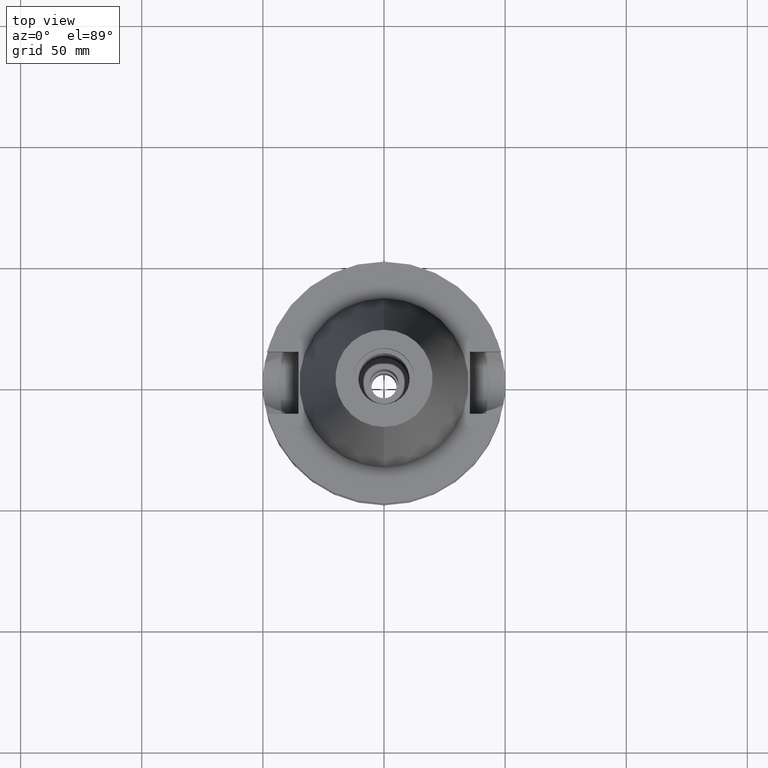
[diagram: clean part render]
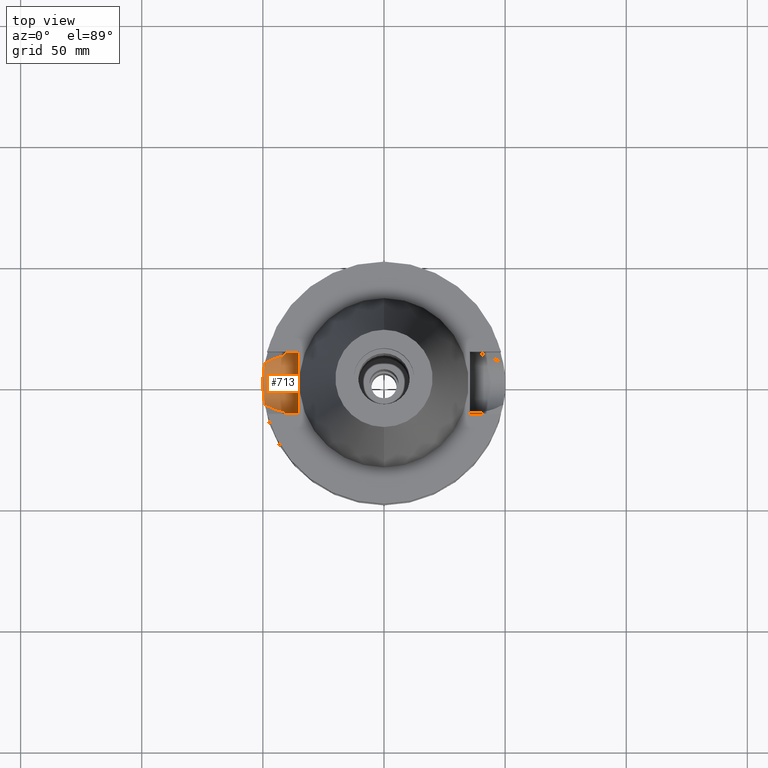
[diagram: same view with one face highlighted and labeled with its STEP entity id]
A machine part, top view. The second image highlights one B-rep face of the part: STEP entity #713.
In plain terms, the highlighted cylindrical surface (edge-blend (fillet) strip) has radius 12.85 mm, axis along (-1, 0, 0).
Its self-contained STEP definition (entity closure, byte-faithful):
#6 = CARTESIAN_POINT ( 'NONE',  ( -49.37885247688166857, 7.862144689149504373, -31.32188303187934864 ) ) ;
#53 = CARTESIAN_POINT ( 'NONE',  ( -49.97920013507613390, 1.472795262005128114, -33.92099889270693325 ) ) ;
#80 = CARTESIAN_POINT ( 'NONE',  ( -49.78995452572426217, 4.578044776538427563, -33.15683700927628763 ) ) ;
#93 = CARTESIAN_POINT ( 'NONE',  ( -45.33962880780819660, -10.38074117369953697, -28.72382121879870098 ) ) ;
#99 = CARTESIAN_POINT ( 'NONE',  ( -49.96639091857334591, 1.855009113946053168, -33.87135769987785494 ) ) ;
#104 = CARTESIAN_POINT ( 'NONE',  ( -44.11099979293295803, 10.81601836549861240, -28.09168216189613432 ) ) ;
#119 = CARTESIAN_POINT ( 'NONE',  ( -49.91487582338712059, 3.004850456022008842, -33.66796213052277409 ) ) ;
#165 = CARTESIAN_POINT ( 'NONE',  ( -49.26250064874000145, -8.556052234130000045, -30.73730776426999967 ) ) ;
#206 = CARTESIAN_POINT ( 'NONE',  ( -49.26250064874000145, 8.556052234130000045, -30.73730776426999967 ) ) ;
#255 = CARTESIAN_POINT ( 'NONE',  ( -35.39999999999999858, -12.84999999999999964, -21.14999999999999858 ) ) ;
#296 = VERTEX_POINT ( 'NONE', #3080 ) ;
#314 = CARTESIAN_POINT ( 'NONE',  ( -49.55496529460636168, -6.656265981446983560, -32.14166343315083907 ) ) ;
#331 = DIRECTION ( 'NONE',  ( -1.000000000000000000, 3.440913946376999995E-14, 0.0000000000000000000 ) ) ;
#341 = CARTESIAN_POINT ( 'NONE',  ( -49.55485633496233788, 6.657059843002524957, -32.14118191407251857 ) ) ;
#346 = CARTESIAN_POINT ( 'NONE',  ( -44.92493849550147189, 10.53397217017883847, -28.51065402509099300 ) ) ;
#347 = B_SPLINE_CURVE_WITH_KNOTS ( 'NONE', 3,
 ( #582, #1565, #2063, #3045, #104, #842, #346, #1334, #3063, #1148, #1902, #1644, #3145, #206 ),
 .UNSPECIFIED., .F., .F.,
 ( 4, 2, 2, 1, 1, 2, 2, 4 ),
 ( 0.0000000000000000000, 0.2500000000000061617, 0.3750000000000089928, 0.4375000000000113243, 0.4687500000000116573, 0.4843750000000118239, 0.5000000000000119904, 1.000000000000000000 ),
 .UNSPECIFIED. ) ;
#364 = CARTESIAN_POINT ( 'NONE',  ( -49.86764686234398880, -3.636664092662420522, -33.47624956157785903 ) ) ;
#371 = B_SPLINE_CURVE_WITH_KNOTS ( 'NONE', 3,
 ( #165, #3053, #1606, #898, #1815, #883, #2618, #1586, #2384, #1104, #1119, #93, #408, #1635, #1394, #3070 ),
 .UNSPECIFIED., .F., .F.,
 ( 4, 2, 2, 1, 1, 1, 1, 2, 2, 4 ),
 ( 0.0000000000000000000, 0.2500000000000027200, 0.3750000000000049960, 0.4375000000000059952, 0.4687500000000071054, 0.4843750000000076605, 0.4921875000000086597, 0.4960937500000093259, 0.5000000000000099920, 1.000000000000000000 ),
 .UNSPECIFIED. ) ;
#408 = CARTESIAN_POINT ( 'NONE',  ( -45.32642341649126649, -10.38569351047765643, -28.71702794901336731 ) ) ;
#426 = CARTESIAN_POINT ( 'NONE',  ( -40.79434747815605533, -11.92110216156726743, -25.97065217280587035 ) ) ;
#441 = CARTESIAN_POINT ( 'NONE',  ( -40.59737185188235031, 12.57410792978981462, -23.79858982319187177 ) ) ;
#451 = CARTESIAN_POINT ( 'NONE',  ( -40.58662879532096923, 12.60876850764078938, -23.62934185159354783 ) ) ;
#465 = CARTESIAN_POINT ( 'NONE',  ( -35.39999999999999858, 12.84999999999999964, -21.14999999999999858 ) ) ;
#473 = CARTESIAN_POINT ( 'NONE',  ( -40.61157134049236106, -12.52820429568858884, -24.00861743071703458 ) ) ;
#545 = CARTESIAN_POINT ( 'NONE',  ( -49.79190313573762694, 4.556817177836899546, -33.16490932762657451 ) ) ;
#557 = CARTESIAN_POINT ( 'NONE',  ( -49.75827387577500360, -4.921781670566413247, -33.02549376348177645 ) ) ;
#577 = CARTESIAN_POINT ( 'NONE',  ( -49.98151726930711192, -1.537017214616752447, -33.93129506476389423 ) ) ;
#582 = CARTESIAN_POINT ( 'NONE',  ( -40.85052569294000335, 11.72538061688000077, -26.40718074535000426 ) ) ;
#593 = CARTESIAN_POINT ( 'NONE',  ( -49.79673529074198512, -4.503806050048861920, -33.18492202728052121 ) ) ;
#620 = EDGE_LOOP ( 'NONE', ( #1935, #1120, #2472, #1181, #2020, #1851, #1783, #1509 ) ) ;
#713 = ADVANCED_FACE ( 'NONE', ( #1046 ), #2977, .F. ) ;
#754 = CARTESIAN_POINT ( 'NONE',  ( -49.52345606483140728, 6.887109232031024320, -31.99909553029120346 ) ) ;
#803 = CARTESIAN_POINT ( 'NONE',  ( -49.56384662194040658, -6.589859603613404282, -32.18165515063974169 ) ) ;
#819 = CARTESIAN_POINT ( 'NONE',  ( -49.60515396997856641, 6.281699430097785530, -32.36773838197739650 ) ) ;
#837 = CARTESIAN_POINT ( 'NONE',  ( -49.79134522951948583, -4.562917808909749517, -33.16259509180243725 ) ) ;
#842 = CARTESIAN_POINT ( 'NONE',  ( -44.65685915191760813, 10.62863037996527105, -28.37269979827329180 ) ) ;
#851 = VERTEX_POINT ( 'NONE', #255 ) ;
#883 = CARTESIAN_POINT ( 'NONE',  ( -46.22829948812656653, -10.03205205359297025, -29.18081566733346932 ) ) ;
#898 = CARTESIAN_POINT ( 'NONE',  ( -47.09537545253213864, -9.660595047503486299, -29.62628657784525998 ) ) ;
#909 = CARTESIAN_POINT ( 'NONE',  ( -40.66327821819965749, -12.35976375020078244, -24.67241565226416000 ) ) ;
#914 = VERTEX_POINT ( 'NONE', #1096 ) ;
#917 = VERTEX_POINT ( 'NONE', #2110 ) ;
#979 = CARTESIAN_POINT ( 'NONE',  ( -49.26250064874000145, 8.556052234130000045, -30.73730776426999967 ) ) ;
#982 = DIRECTION ( 'NONE',  ( -1.000000000000000000, 0.0000000000000000000, 0.0000000000000000000 ) ) ;
#994 = CARTESIAN_POINT ( 'NONE',  ( -49.45252181837593497, 7.379311470558238994, -31.67177590059428738 ) ) ;
#1041 = EDGE_CURVE ( 'NONE', #914, #1064, #3096, .T. ) ;
#1043 = CARTESIAN_POINT ( 'NONE',  ( -49.99978277987447228, 0.1279040284991993515, -33.99951180098985049 ) ) ;
#1046 = FACE_OUTER_BOUND ( 'NONE', #620, .T. ) ;
#1055 = CARTESIAN_POINT ( 'NONE',  ( -49.55310733086664499, 6.670070396636083032, -32.13329829164170093 ) ) ;
#1064 = VERTEX_POINT ( 'NONE', #465 ) ;
#1069 = CARTESIAN_POINT ( 'NONE',  ( -49.99656935723924533, 0.6200430171412242286, -33.98744614801742614 ) ) ;
#1090 = CARTESIAN_POINT ( 'NONE',  ( -49.57410189270275680, -6.512428102838127231, -32.22769848471676823 ) ) ;
#1096 = CARTESIAN_POINT ( 'NONE',  ( -40.51083188481999997, 12.84999999999999964, -21.14999999999999858 ) ) ;
#1100 = VERTEX_POINT ( 'NONE', #1664 ) ;
#1104 = CARTESIAN_POINT ( 'NONE',  ( -45.39789210320071788, -10.35882313182633574, -28.75379307241355065 ) ) ;
#1109 = CARTESIAN_POINT ( 'NONE',  ( -49.78008232286801871, 4.684409443921846439, -33.11588758370572094 ) ) ;
#1119 = CARTESIAN_POINT ( 'NONE',  ( -45.36294729377421930, -10.37197851525489511, -28.73581682146076588 ) ) ;
#1120 = ORIENTED_EDGE ( 'NONE', *, *, #1614, .F. ) ;
#1148 = CARTESIAN_POINT ( 'NONE',  ( -45.44311052034208842, 10.34162762289197346, -28.77718683509478481 ) ) ;
#1149 = AXIS2_PLACEMENT_3D ( 'NONE', #1470, #982, #2713 ) ;
#1162 = CARTESIAN_POINT ( 'NONE',  ( -40.73816994079598430, 12.11682134614811446, -25.53412886413605776 ) ) ;
#1173 = EDGE_CURVE ( 'NONE', #914, #1751, #1638, .T. ) ;
#1181 = ORIENTED_EDGE ( 'NONE', *, *, #1041, .F. ) ;
#1192 = CARTESIAN_POINT ( 'NONE',  ( -40.85052569294000335, 11.72538061688000077, -26.40718074535000426 ) ) ;
#1195 = CARTESIAN_POINT ( 'NONE',  ( -40.68244699597367031, -12.29665972421070386, -24.88712495138160463 ) ) ;
#1236 = EDGE_CURVE ( 'NONE', #851, #1064, #2721, .T. ) ;
#1283 = CARTESIAN_POINT ( 'NONE',  ( -49.99988398040816406, 0.05792329649638339878, -33.99989059424428461 ) ) ;
#1300 = CARTESIAN_POINT ( 'NONE',  ( -49.79275732128256493, 4.547483022614009052, -33.16844661935762417 ) ) ;
#1303 = DIRECTION ( 'NONE',  ( 1.000000000000000000, 3.440913946376999995E-14, 0.0000000000000000000 ) ) ;
#1311 = EDGE_CURVE ( 'NONE', #296, #917, #2057, .T. ) ;
#1315 = CARTESIAN_POINT ( 'NONE',  ( -49.99935165422181171, -0.7784239457955395292, -33.99781837044695010 ) ) ;
#1328 = CARTESIAN_POINT ( 'NONE',  ( -49.55642839041620817, 6.645350893237528922, -32.14826596361736222 ) ) ;
#1334 = CARTESIAN_POINT ( 'NONE',  ( -45.22920964184289971, 10.42208550550872737, -28.66717123938990142 ) ) ;
#1338 = AXIS2_PLACEMENT_3D ( 'NONE', #1702, #3168, #2906 ) ;
#1350 = CARTESIAN_POINT ( 'NONE',  ( -49.99187023699136034, 0.9036077936280149103, -33.96960422967970317 ) ) ;
#1394 = CARTESIAN_POINT ( 'NONE',  ( -42.52900368523086172, -11.33559029351620140, -27.27655163511209935 ) ) ;
#1408 = CARTESIAN_POINT ( 'NONE',  ( -40.51083188482000708, 12.85000000000001918, -21.59155814776823235 ) ) ;
#1438 = CARTESIAN_POINT ( 'NONE',  ( -40.59544973979548388, 12.58031391754228423, -23.76897202841965395 ) ) ;
#1443 = CARTESIAN_POINT ( 'NONE',  ( -40.60257358959960783, -12.55730255709285004, -23.87715530987610535 ) ) ;
#1470 = CARTESIAN_POINT ( 'NONE',  ( -35.39999999999999858, 1.497743035356999952E-14, -21.14999999999999858 ) ) ;
#1509 = ORIENTED_EDGE ( 'NONE', *, *, #2512, .T. ) ;
#1525 = CARTESIAN_POINT ( 'NONE',  ( -49.81871769261293537, -4.255133180637566070, -33.27576126219850750 ) ) ;
#1541 = CARTESIAN_POINT ( 'NONE',  ( -49.61096464780241178, -6.225456152703760182, -32.39171795626220529 ) ) ;
#1561 = CARTESIAN_POINT ( 'NONE',  ( -49.72318384365986788, -5.264673824119553203, -32.87839317404058903 ) ) ;
#1565 = CARTESIAN_POINT ( 'NONE',  ( -41.73354892065646737, 11.52031751146447824, -26.86454431680629185 ) ) ;
#1576 = CARTESIAN_POINT ( 'NONE',  ( -49.92883535255599270, -2.681505938531314470, -33.72308165344787767 ) ) ;
#1586 = CARTESIAN_POINT ( 'NONE',  ( -45.64089271258318092, -10.26618226803028833, -28.87878580418471941 ) ) ;
#1590 = CARTESIAN_POINT ( 'NONE',  ( -49.79350631852790343, -4.539276377369993121, -33.17154855833109650 ) ) ;
#1597 = CARTESIAN_POINT ( 'NONE',  ( -35.39999999999999858, -12.84999999999999964, -21.14999999999999858 ) ) ;
#1606 = CARTESIAN_POINT ( 'NONE',  ( -48.08193126413723206, -9.200215575702062054, -30.13257516790392998 ) ) ;
#1614 = EDGE_CURVE ( 'NONE', #851, #917, #1616, .T. ) ;
#1616 = LINE ( 'NONE', #1597, #2560 ) ;
#1635 = CARTESIAN_POINT ( 'NONE',  ( -44.01758758835742213, -10.87575281470042299, -28.04371448832905855 ) ) ;
#1638 = B_SPLINE_CURVE_WITH_KNOTS ( 'NONE', 3,
 ( #1689, #1408, #2439, #2901, #2882, #1936, #2646, #451, #2410, #1438, #441, #2394, #1162, #2421 ),
 .UNSPECIFIED., .F., .F.,
 ( 4, 2, 2, 1, 1, 2, 2, 4 ),
 ( 0.0000000000000000000, 0.2500000000000048850, 0.3750000000000073830, 0.4375000000000096034, 0.4687500000000108247, 0.4843750000000114353, 0.5000000000000119904, 1.000000000000000000 ),
 .UNSPECIFIED. ) ;
#1644 = CARTESIAN_POINT ( 'NONE',  ( -46.93592870718264010, 9.770479647113017307, -29.54494009652041342 ) ) ;
#1664 = CARTESIAN_POINT ( 'NONE',  ( -49.26250064874000145, 8.556052234130000045, -30.73730776426999967 ) ) ;
#1689 = CARTESIAN_POINT ( 'NONE',  ( -40.51083188481999997, 12.84999999999999964, -21.14999999999999858 ) ) ;
#1702 = CARTESIAN_POINT ( 'NONE',  ( -35.39999999999999858, 1.497743035356999952E-14, -21.14999999999999858 ) ) ;
#1745 = EDGE_CURVE ( 'NONE', #1751, #1100, #347, .T. ) ;
#1751 = VERTEX_POINT ( 'NONE', #1192 ) ;
#1772 = CARTESIAN_POINT ( 'NONE',  ( -49.55404929938741532, -6.663081176481601808, -32.13753266286785504 ) ) ;
#1783 = ORIENTED_EDGE ( 'NONE', *, *, #2128, .T. ) ;
#1785 = CARTESIAN_POINT ( 'NONE',  ( -49.99991736554086685, 0.01130191161810181928, -34.00001617349637684 ) ) ;
#1802 = CARTESIAN_POINT ( 'NONE',  ( -49.75306724021409366, 4.963223257466422567, -33.00317556722509948 ) ) ;
#1815 = CARTESIAN_POINT ( 'NONE',  ( -46.75528698498010272, -9.811200068331615398, -29.45163405444501592 ) ) ;
#1820 = CARTESIAN_POINT ( 'NONE',  ( -49.79013702931998608, -4.576075037383641408, -33.15758772696371182 ) ) ;
#1851 = ORIENTED_EDGE ( 'NONE', *, *, #1745, .T. ) ;
#1902 = CARTESIAN_POINT ( 'NONE',  ( -45.48381873032576550, 10.32615637662244623, -28.79812331102323242 ) ) ;
#1907 = CARTESIAN_POINT ( 'NONE',  ( -40.63720115042401915, -12.44498656809117598, -24.35265160719256627 ) ) ;
#1935 = ORIENTED_EDGE ( 'NONE', *, *, #1311, .T. ) ;
#1936 = CARTESIAN_POINT ( 'NONE',  ( -40.56599870368348348, 12.67508435575842363, -23.26602303909836778 ) ) ;
#1980 = CARTESIAN_POINT ( 'NONE',  ( -49.47556776225051323, 7.223238673008710364, -31.77919332558226628 ) ) ;
#2020 = ORIENTED_EDGE ( 'NONE', *, *, #1173, .T. ) ;
#2027 = CARTESIAN_POINT ( 'NONE',  ( -49.64886371697402012, 5.925076882142127133, -32.55913415002481059 ) ) ;
#2037 = CARTESIAN_POINT ( 'NONE',  ( -49.99918878545307166, 0.2915256915318246711, -33.99728939609448020 ) ) ;
#2055 = CARTESIAN_POINT ( 'NONE',  ( -49.90695299040910982, -3.064054277338159160, -33.63563523791077614 ) ) ;
#2057 = B_SPLINE_CURVE_WITH_KNOTS ( 'NONE', 3,
 ( #2117, #426, #2382, #1195, #909, #1907, #3100, #473, #2399, #1443, #3150, #2868, #2414, #2856 ),
 .UNSPECIFIED., .F., .F.,
 ( 4, 2, 2, 1, 1, 2, 2, 4 ),
 ( 0.0000000000000000000, 0.2500000000000067724, 0.3750000000000099920, 0.4375000000000106026, 0.4687500000000101585, 0.4843750000000098810, 0.5000000000000096589, 1.000000000000000000 ),
 .UNSPECIFIED. ) ;
#2063 = CARTESIAN_POINT ( 'NONE',  ( -42.56483523201618624, 11.29548526702864564, -27.29433832988466335 ) ) ;
#2073 = CARTESIAN_POINT ( 'NONE',  ( -49.55645080412986658, -6.645196272298445450, -32.14835934792388628 ) ) ;
#2110 = CARTESIAN_POINT ( 'NONE',  ( -40.51083188481999997, -12.84999999999999964, -21.14999999999999858 ) ) ;
#2117 = CARTESIAN_POINT ( 'NONE',  ( -40.85052569294000335, -11.72538061688000077, -26.40718074535000426 ) ) ;
#2128 = EDGE_CURVE ( 'NONE', #1100, #2626, #3140, .T. ) ;
#2219 = CARTESIAN_POINT ( 'NONE',  ( -49.32369756939128536, 8.203703597060219010, -31.05175613888384234 ) ) ;
#2273 = CARTESIAN_POINT ( 'NONE',  ( -49.64357081490507539, -5.961532524571730107, -32.53519818132365060 ) ) ;
#2289 = CARTESIAN_POINT ( 'NONE',  ( -49.38319382138019620, -7.861146764567065404, -31.35746596108151962 ) ) ;
#2302 = CARTESIAN_POINT ( 'NONE',  ( -49.55601938749106239, 6.648398654127628760, -32.14642309832363765 ) ) ;
#2319 = CARTESIAN_POINT ( 'NONE',  ( -49.86308249902582901, 3.775850016889728877, -33.45954281413143150 ) ) ;
#2341 = CARTESIAN_POINT ( 'NONE',  ( -49.59426852406252095, -6.357723774431670805, -32.31781328722016866 ) ) ;
#2382 = CARTESIAN_POINT ( 'NONE',  ( -40.74530552706649189, -12.08734373582207944, -25.53456320665380730 ) ) ;
#2384 = CARTESIAN_POINT ( 'NONE',  ( -45.47919955520497126, -10.32804781462956889, -28.79561755087490482 ) ) ;
#2394 = CARTESIAN_POINT ( 'NONE',  ( -40.65436097481651245, 12.39000951530815087, -24.66364262345140546 ) ) ;
#2399 = CARTESIAN_POINT ( 'NONE',  ( -40.60613923872061548, -12.54577469982790916, -23.92970515985308566 ) ) ;
#2410 = CARTESIAN_POINT ( 'NONE',  ( -40.59188688274389989, 12.59181081970429972, -23.71312563686031893 ) ) ;
#2414 = CARTESIAN_POINT ( 'NONE',  ( -40.51083188481999287, -12.84999999999998366, -22.03311098683157709 ) ) ;
#2421 = CARTESIAN_POINT ( 'NONE',  ( -40.85052569294000335, 11.72538061688000077, -26.40718074535000426 ) ) ;
#2439 = CARTESIAN_POINT ( 'NONE',  ( -40.51818746066845733, 12.82722055570913255, -22.03689885935567716 ) ) ;
#2472 = ORIENTED_EDGE ( 'NONE', *, *, #1236, .T. ) ;
#2512 = EDGE_CURVE ( 'NONE', #2626, #296, #371, .T. ) ;
#2525 = CARTESIAN_POINT ( 'NONE',  ( -49.55867599778861177, -6.628592829024116284, -32.15838541680299301 ) ) ;
#2528 = CARTESIAN_POINT ( 'NONE',  ( -40.51083188481999997, 12.84999999999999964, -21.14999999999999858 ) ) ;
#2540 = CARTESIAN_POINT ( 'NONE',  ( -49.66426015247083114, -5.786401572444564323, -32.62507869568761265 ) ) ;
#2554 = CARTESIAN_POINT ( 'NONE',  ( -49.80418093015187253, -4.420986045229516215, -33.21572998612065675 ) ) ;
#2560 = VECTOR ( 'NONE', #331, 1000.000000000000000 ) ;
#2573 = CARTESIAN_POINT ( 'NONE',  ( -49.78701911204715458, 4.609908265308011899, -33.14467182120153410 ) ) ;
#2604 = CARTESIAN_POINT ( 'NONE',  ( -49.26250064874000145, -8.556052234130000045, -30.73730776426999967 ) ) ;
#2618 = CARTESIAN_POINT ( 'NONE',  ( -45.96059204081843319, -10.14121367924998474, -29.04319746424717508 ) ) ;
#2626 = VERTEX_POINT ( 'NONE', #2604 ) ;
#2646 = CARTESIAN_POINT ( 'NONE',  ( -40.57496331174877469, 12.64632619882844189, -23.43376116601609382 ) ) ;
#2709 = CARTESIAN_POINT ( 'NONE',  ( -49.54064746236903716, 6.762057736795821228, -32.07703431437979447 ) ) ;
#2713 = DIRECTION ( 'NONE',  ( 0.0000000000000000000, 0.0000000000000000000, -1.000000000000000000 ) ) ;
#2721 = CIRCLE ( 'NONE', #1338, 12.84999999999999964 ) ;
#2746 = CARTESIAN_POINT ( 'NONE',  ( -49.48018584328565339, -7.212056195080728038, -31.80433119722100699 ) ) ;
#2759 = CARTESIAN_POINT ( 'NONE',  ( -49.70802902506820686, 5.397483292514090536, -32.81309429933458688 ) ) ;
#2776 = CARTESIAN_POINT ( 'NONE',  ( -49.76585878211297143, 4.834011014263940531, -33.05670933615208185 ) ) ;
#2793 = CARTESIAN_POINT ( 'NONE',  ( -49.72668424236645990, 5.222831059604581938, -32.89222978171090972 ) ) ;
#2856 = CARTESIAN_POINT ( 'NONE',  ( -40.51083188481999997, -12.84999999999999964, -21.14999999999999858 ) ) ;
#2868 = CARTESIAN_POINT ( 'NONE',  ( -40.54025177940290092, -12.75862267496949620, -22.93154239035596476 ) ) ;
#2882 = CARTESIAN_POINT ( 'NONE',  ( -40.54944865802443843, 12.72805685033412182, -22.93054388460652504 ) ) ;
#2901 = CARTESIAN_POINT ( 'NONE',  ( -40.54025418821384363, 12.75731235969285571, -22.70688809813407261 ) ) ;
#2906 = DIRECTION ( 'NONE',  ( 0.0000000000000000000, -1.000000000000000000, 0.0000000000000000000 ) ) ;
#2941 = VECTOR ( 'NONE', #1303, 1000.000000000000000 ) ;
#2960 = CARTESIAN_POINT ( 'NONE',  ( -49.50787092312697979, 6.997722635164828731, -31.92787014401568513 ) ) ;
#2977 = CYLINDRICAL_SURFACE ( 'NONE', #1149, 12.85000000000000320 ) ;
#3007 = CARTESIAN_POINT ( 'NONE',  ( -49.99991625534194384, -0.01371456419614940081, -34.00001357600912399 ) ) ;
#3023 = CARTESIAN_POINT ( 'NONE',  ( -49.54899534419178053, 6.700559330930998314, -32.11474970701958398 ) ) ;
#3041 = CARTESIAN_POINT ( 'NONE',  ( -49.84637315210022024, -3.922661578633231727, -33.38950660939434556 ) ) ;
#3045 = CARTESIAN_POINT ( 'NONE',  ( -43.73415932452066102, 10.93837526022302065, -27.89752116699006734 ) ) ;
#3053 = CARTESIAN_POINT ( 'NONE',  ( -48.69468901713927522, -8.881899995007913162, -30.44650970802813816 ) ) ;
#3059 = CARTESIAN_POINT ( 'NONE',  ( -49.26250064874000145, -8.556052234130000045, -30.73730776426999967 ) ) ;
#3063 = CARTESIAN_POINT ( 'NONE',  ( -45.35779268573785572, 10.37384738315027910, -28.73330609820753878 ) ) ;
#3070 = CARTESIAN_POINT ( 'NONE',  ( -40.85052569294000335, -11.72538061688000077, -26.40718074535000426 ) ) ;
#3080 = CARTESIAN_POINT ( 'NONE',  ( -40.85052569294000335, -11.72538061688000077, -26.40718074535000426 ) ) ;
#3096 = LINE ( 'NONE', #2528, #2941 ) ;
#3100 = CARTESIAN_POINT ( 'NONE',  ( -40.62483164125755053, -12.48524007482440368, -24.19334343400565146 ) ) ;
#3140 = B_SPLINE_CURVE_WITH_KNOTS ( 'NONE', 3,
 ( #979, #2219, #6, #994, #1980, #2960, #754, #2709, #3023, #1055, #341, #2302, #1328, #819, #2027, #2759, #2793, #1802, #2776, #1109, #2573, #80, #545, #1300, #2319, #119, #99, #53, #1350, #1069, #2037, #1043, #1283, #1785, #3007, #1315, #577, #1576, #2055, #364, #3041, #1525, #2554, #593, #1590, #837, #1820, #557, #1561, #2540, #2273, #1541, #2341, #1090, #803, #2525, #2073, #314, #1772, #2746, #2289, #3059 ),
 .UNSPECIFIED., .F., .F.,
 ( 4, 2, 2, 1, 1, 1, 1, 2, 2, 2, 2, 1, 1, 1, 2, 2, 2, 2, 1, 1, 1, 2, 2, 2, 2, 1, 1, 1, 1, 2, 2, 2, 2, 1, 1, 1, 1, 2, 2, 4 ),
 ( 0.0000000000000000000, 0.06249999999999623912, 0.09374999999999397704, 0.1093749999999924505, 0.1171874999999920203, 0.1210937499999922839, 0.1230468749999922146, 0.1240234374999926031, 0.1249999999999929778, 0.1874999999999970024, 0.2187499999999990563, 0.2343749999999997224, 0.2421875000000002220, 0.2460937500000003331, 0.2480468750000006106, 0.2500000000000008882, 0.3750000000000123790, 0.4375000000000182632, 0.4687500000000212053, 0.4843750000000226485, 0.4921875000000233702, 0.4960937500000237588, 0.5000000000000240918, 0.6250000000000358602, 0.6875000000000418554, 0.7187500000000448530, 0.7343750000000465183, 0.7421875000000475175, 0.7460937500000478506, 0.7480468750000482947, 0.7500000000000486278, 0.8125000000000442979, 0.8437500000000420775, 0.8593750000000410783, 0.8671875000000407452, 0.8710937500000401901, 0.8730468750000403011, 0.8740234375000400791, 0.8750000000000399680, 1.000000000000000000 ),
 .UNSPECIFIED. ) ;
#3145 = CARTESIAN_POINT ( 'NONE',  ( -48.18082156911003722, 9.176791025776463329, -30.18333853164898883 ) ) ;
#3150 = CARTESIAN_POINT ( 'NONE',  ( -40.60093031198017854, -12.56261288210636451, -23.85260464680346360 ) ) ;
#3168 = DIRECTION ( 'NONE',  ( 1.000000000000000000, 0.0000000000000000000, 0.0000000000000000000 ) ) ;